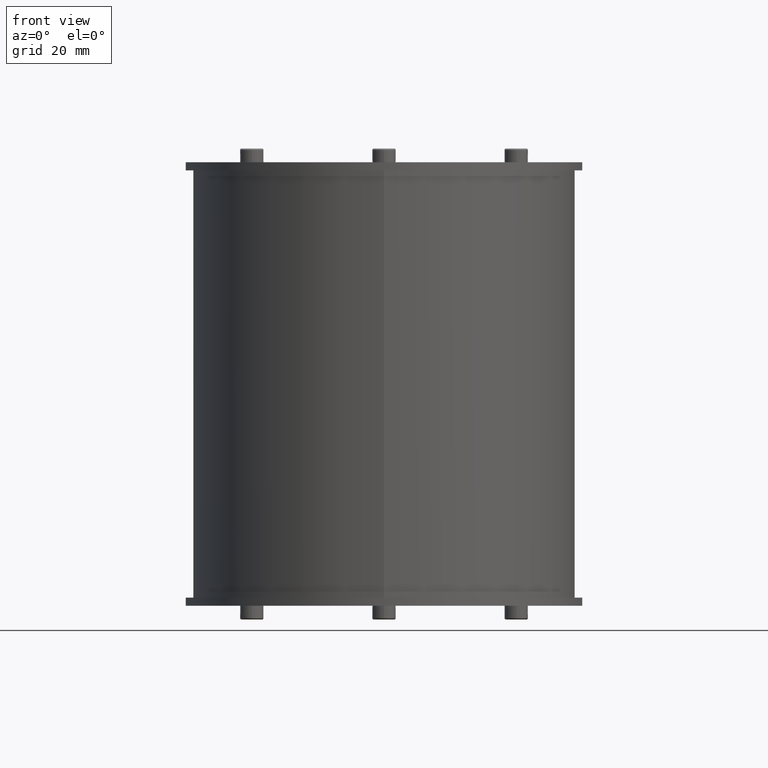
[diagram: clean part render]
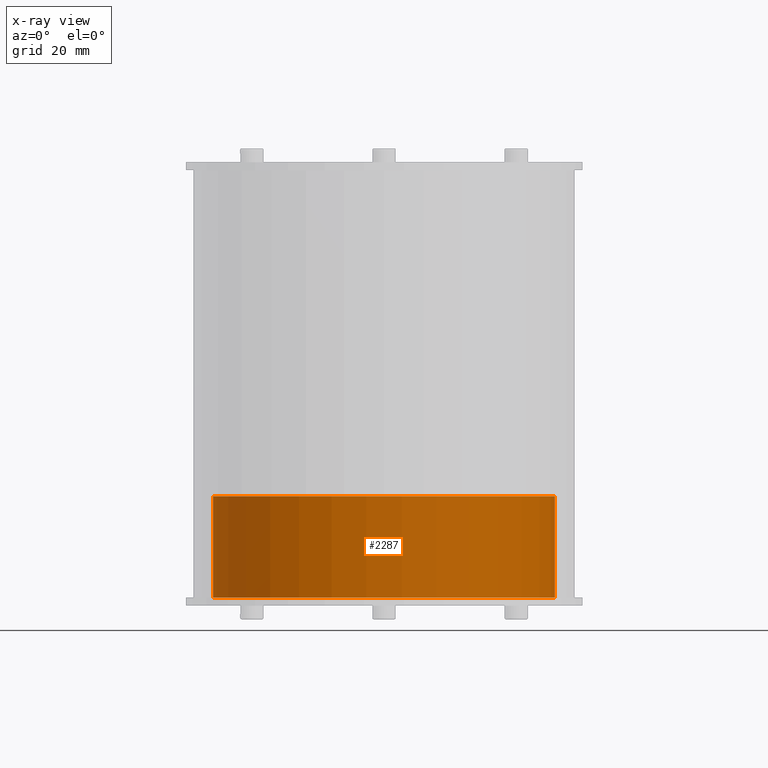
[diagram: x-ray — body ghosted, one internal face saturated and labeled with its STEP entity id]
A machine part, front view, then the same camera in x-ray: the body is ghosted and one INTERNAL B-rep face — a face not visible from any outside direction — is saturated and labeled: STEP entity #2287.
In plain terms, the highlighted cylindrical surface (partial cylindrical patch) has radius 62.4 mm, axis along (0, 0, 1).
Its self-contained STEP definition (entity closure, byte-faithful):
#2001=CARTESIAN_POINT('',(62.397964269005570,-30.695961227786711,-37.500000000000000));
#2002=VERTEX_POINT('',#2001);
#2010=CARTESIAN_POINT('',(62.397964269005570,-30.695961227786711,-0.500000000000000));
#2011=VERTEX_POINT('',#2010);
#2012=CARTESIAN_POINT('',(62.397964269005570,-30.695961227786711,-37.500000000000000));
#2013=DIRECTION('',(0.0,0.0,1.0));
#2014=VECTOR('',#2013,37.0);
#2015=LINE('',#2012,#2014);
#2016=EDGE_CURVE('',#2002,#2011,#2015,.T.);
#2043=CARTESIAN_POINT('',(-62.397964269005541,-30.695961227786768,-0.500000000000000));
#2044=VERTEX_POINT('',#2043);
#2052=CARTESIAN_POINT('',(-62.397964269005541,-30.695961227786768,-37.500000000000000));
#2053=VERTEX_POINT('',#2052);
#2054=CARTESIAN_POINT('',(-62.397964269005541,-30.695961227786768,-37.500000000000000));
#2055=DIRECTION('',(0.0,0.0,1.0));
#2056=VECTOR('',#2055,37.0);
#2057=LINE('',#2054,#2056);
#2058=EDGE_CURVE('',#2053,#2044,#2057,.T.);
#2264=CARTESIAN_POINT('',(0.0,-31.199999999999818,-37.500000000000000));
#2265=DIRECTION('',(0.0,0.0,1.0));
#2266=DIRECTION('',(1.0,0.0,0.0));
#2267=AXIS2_PLACEMENT_3D('',#2264,#2265,#2266);
#2268=CYLINDRICAL_SURFACE('',#2267,62.399999999999885);
#2269=CARTESIAN_POINT('',(0.0,-31.199999999999818,-0.500000000000000));
#2270=DIRECTION('',(0.0,0.0,-1.0));
#2271=DIRECTION('',(1.0,0.0,0.0));
#2272=AXIS2_PLACEMENT_3D('',#2269,#2270,#2271);
#2273=CIRCLE('',#2272,62.399999999999885);
#2274=EDGE_CURVE('',#2044,#2011,#2273,.T.);
#2275=ORIENTED_EDGE('',*,*,#2274,.T.);
#2276=ORIENTED_EDGE('',*,*,#2016,.F.);
#2277=CARTESIAN_POINT('',(0.0,-31.199999999999818,-37.500000000000000));
#2278=DIRECTION('',(0.0,0.0,-1.0));
#2279=DIRECTION('',(1.0,0.0,0.0));
#2280=AXIS2_PLACEMENT_3D('',#2277,#2278,#2279);
#2281=CIRCLE('',#2280,62.399999999999885);
#2282=EDGE_CURVE('',#2053,#2002,#2281,.T.);
#2283=ORIENTED_EDGE('',*,*,#2282,.F.);
#2284=ORIENTED_EDGE('',*,*,#2058,.T.);
#2285=EDGE_LOOP('',(#2275,#2276,#2283,#2284));
#2286=FACE_OUTER_BOUND('',#2285,.F.);
#2287=ADVANCED_FACE('',(#2286),#2268,.F.);